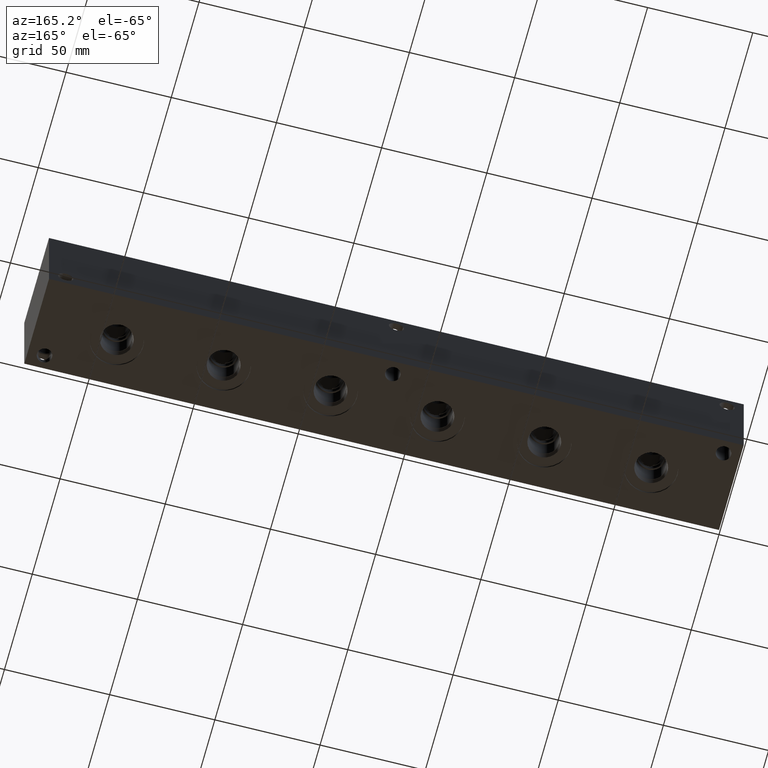
[diagram: clean part render]
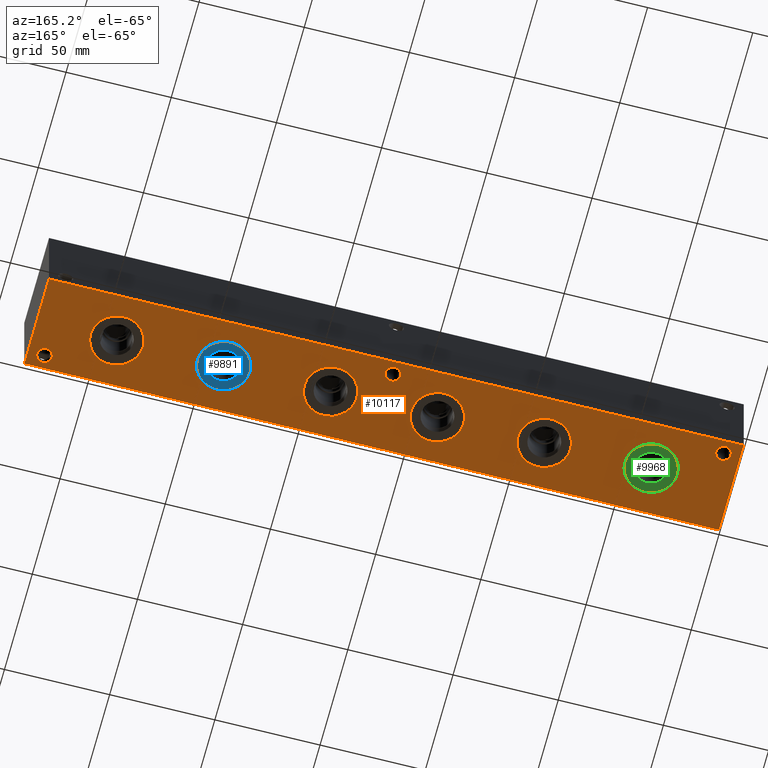
[diagram: same view with three faces highlighted in distinct colors, each labeled with its STEP entity id]
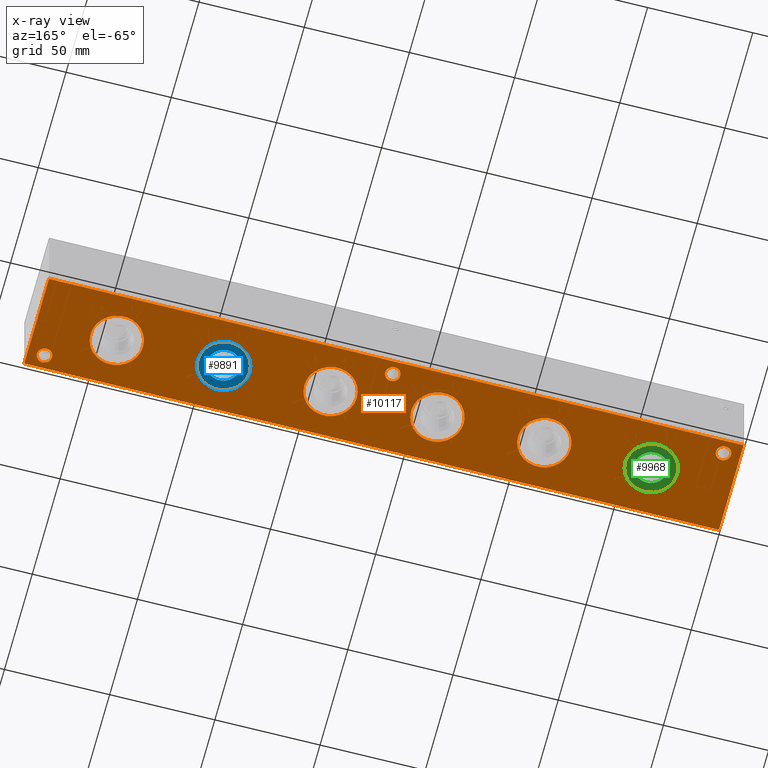
[diagram: x-ray of the same camera — body ghosted, the three highlighted faces saturated]
A machine part, auxiliary view with three faces highlighted in distinct colors.
The next image is the same camera in x-ray (body ghosted, the three faces saturated) — at least one of them is partly hidden behind the body in this view.
Their STEP definitions:

[orange] entity #10117 — the highlighted planar face has unit normal (0, 0, 1).
#290=CIRCLE('',#10347,12.5095);
#291=CIRCLE('',#10348,12.5095);
#301=CIRCLE('',#10363,12.5095);
#302=CIRCLE('',#10364,12.5095);
#312=CIRCLE('',#10379,12.5095);
#313=CIRCLE('',#10380,12.5095);
#323=CIRCLE('',#10395,12.5095);
#324=CIRCLE('',#10396,12.5095);
#334=CIRCLE('',#10411,12.5095);
#335=CIRCLE('',#10412,12.5095);
#420=CIRCLE('',#10582,12.5095);
#421=CIRCLE('',#10583,12.5095);
#554=CIRCLE('',#10847,3.5687);
#555=CIRCLE('',#10849,3.5687);
#556=CIRCLE('',#10851,3.5687);
#704=FACE_BOUND('',#2253,.T.);
#705=FACE_BOUND('',#2254,.T.);
#706=FACE_BOUND('',#2255,.T.);
#707=FACE_BOUND('',#2256,.T.);
#708=FACE_BOUND('',#2257,.T.);
#709=FACE_BOUND('',#2258,.T.);
#710=FACE_BOUND('',#2259,.T.);
#711=FACE_BOUND('',#2260,.T.);
#712=FACE_BOUND('',#2261,.T.);
#1630=FACE_OUTER_BOUND('',#2252,.T.);
#2252=EDGE_LOOP('',(#9020,#9021,#9022,#9023));
#2253=EDGE_LOOP('',(#9024,#9025));
#2254=EDGE_LOOP('',(#9026,#9027));
#2255=EDGE_LOOP('',(#9028,#9029));
#2256=EDGE_LOOP('',(#9030,#9031));
#2257=EDGE_LOOP('',(#9032,#9033));
#2258=EDGE_LOOP('',(#9034,#9035));
#2259=EDGE_LOOP('',(#9036));
#2260=EDGE_LOOP('',(#9037));
#2261=EDGE_LOOP('',(#9038));
#3007=LINE('',#18010,#3760);
#3010=LINE('',#18015,#3763);
#3012=LINE('',#18019,#3765);
#3014=LINE('',#18022,#3767);
#3760=VECTOR('',#13401,10.);
#3763=VECTOR('',#13406,10.);
#3765=VECTOR('',#13410,10.);
#3767=VECTOR('',#13414,10.);
#4356=VERTEX_POINT('',#16672);
#4357=VERTEX_POINT('',#16673);
#4367=VERTEX_POINT('',#16703);
#4368=VERTEX_POINT('',#16704);
#4378=VERTEX_POINT('',#16734);
#4379=VERTEX_POINT('',#16735);
#4389=VERTEX_POINT('',#16765);
#4390=VERTEX_POINT('',#16766);
#4400=VERTEX_POINT('',#16796);
#4401=VERTEX_POINT('',#16797);
#4509=VERTEX_POINT('',#17223);
#4510=VERTEX_POINT('',#17224);
#4659=VERTEX_POINT('',#17796);
#4660=VERTEX_POINT('',#17800);
#4661=VERTEX_POINT('',#17804);
#4718=VERTEX_POINT('',#18008);
#4719=VERTEX_POINT('',#18009);
#4720=VERTEX_POINT('',#18014);
#4721=VERTEX_POINT('',#18018);
#5593=EDGE_CURVE('',#4356,#4357,#290,.T.);
#5594=EDGE_CURVE('',#4357,#4356,#291,.T.);
#5608=EDGE_CURVE('',#4367,#4368,#301,.T.);
#5609=EDGE_CURVE('',#4368,#4367,#302,.T.);
#5623=EDGE_CURVE('',#4378,#4379,#312,.T.);
#5624=EDGE_CURVE('',#4379,#4378,#313,.T.);
#5638=EDGE_CURVE('',#4389,#4390,#323,.T.);
#5639=EDGE_CURVE('',#4390,#4389,#324,.T.);
#5653=EDGE_CURVE('',#4400,#4401,#334,.T.);
#5654=EDGE_CURVE('',#4401,#4400,#335,.T.);
#5817=EDGE_CURVE('',#4509,#4510,#420,.T.);
#5818=EDGE_CURVE('',#4510,#4509,#421,.T.);
#6057=EDGE_CURVE('',#4659,#4659,#554,.T.);
#6059=EDGE_CURVE('',#4660,#4660,#555,.T.);
#6061=EDGE_CURVE('',#4661,#4661,#556,.T.);
#6153=EDGE_CURVE('',#4718,#4719,#3007,.T.);
#6156=EDGE_CURVE('',#4720,#4718,#3010,.T.);
#6158=EDGE_CURVE('',#4721,#4720,#3012,.T.);
#6160=EDGE_CURVE('',#4719,#4721,#3014,.T.);
#9020=ORIENTED_EDGE('',*,*,#6160,.F.);
#9021=ORIENTED_EDGE('',*,*,#6153,.F.);
#9022=ORIENTED_EDGE('',*,*,#6156,.F.);
#9023=ORIENTED_EDGE('',*,*,#6158,.F.);
#9024=ORIENTED_EDGE('',*,*,#5593,.T.);
#9025=ORIENTED_EDGE('',*,*,#5594,.T.);
#9026=ORIENTED_EDGE('',*,*,#5608,.T.);
#9027=ORIENTED_EDGE('',*,*,#5609,.T.);
#9028=ORIENTED_EDGE('',*,*,#5623,.T.);
#9029=ORIENTED_EDGE('',*,*,#5624,.T.);
#9030=ORIENTED_EDGE('',*,*,#5638,.T.);
#9031=ORIENTED_EDGE('',*,*,#5639,.T.);
#9032=ORIENTED_EDGE('',*,*,#5653,.T.);
#9033=ORIENTED_EDGE('',*,*,#5654,.T.);
#9034=ORIENTED_EDGE('',*,*,#5817,.T.);
#9035=ORIENTED_EDGE('',*,*,#5818,.T.);
#9036=ORIENTED_EDGE('',*,*,#6057,.T.);
#9037=ORIENTED_EDGE('',*,*,#6059,.T.);
#9038=ORIENTED_EDGE('',*,*,#6061,.T.);
#9276=PLANE('',#10975);
#10117=ADVANCED_FACE('',(#1630,#704,#705,#706,#707,#708,#709,#710,#711,
#712),#9276,.F.);
#10347=AXIS2_PLACEMENT_3D('',#16674,#12033,#12034);
#10348=AXIS2_PLACEMENT_3D('',#16675,#12035,#12036);
#10363=AXIS2_PLACEMENT_3D('',#16705,#12069,#12070);
#10364=AXIS2_PLACEMENT_3D('',#16706,#12071,#12072);
#10379=AXIS2_PLACEMENT_3D('',#16736,#12105,#12106);
#10380=AXIS2_PLACEMENT_3D('',#16737,#12107,#12108);
#10395=AXIS2_PLACEMENT_3D('',#16767,#12141,#12142);
#10396=AXIS2_PLACEMENT_3D('',#16768,#12143,#12144);
#10411=AXIS2_PLACEMENT_3D('',#16798,#12177,#12178);
#10412=AXIS2_PLACEMENT_3D('',#16799,#12179,#12180);
#10582=AXIS2_PLACEMENT_3D('',#17225,#12541,#12542);
#10583=AXIS2_PLACEMENT_3D('',#17226,#12543,#12544);
#10847=AXIS2_PLACEMENT_3D('',#17798,#13125,#13126);
#10849=AXIS2_PLACEMENT_3D('',#17802,#13130,#13131);
#10851=AXIS2_PLACEMENT_3D('',#17806,#13135,#13136);
#10975=AXIS2_PLACEMENT_3D('',#18024,#13417,#13418);
#12033=DIRECTION('center_axis',(0.,0.,1.));
#12034=DIRECTION('ref_axis',(1.,0.,0.));
#12035=DIRECTION('center_axis',(0.,0.,1.));
#12036=DIRECTION('ref_axis',(1.,0.,0.));
#12069=DIRECTION('center_axis',(0.,0.,1.));
#12070=DIRECTION('ref_axis',(1.,0.,0.));
#12071=DIRECTION('center_axis',(0.,0.,1.));
#12072=DIRECTION('ref_axis',(1.,0.,0.));
#12105=DIRECTION('center_axis',(0.,0.,1.));
#12106=DIRECTION('ref_axis',(1.,0.,0.));
#12107=DIRECTION('center_axis',(0.,0.,1.));
#12108=DIRECTION('ref_axis',(1.,0.,0.));
#12141=DIRECTION('center_axis',(0.,0.,1.));
#12142=DIRECTION('ref_axis',(1.,0.,0.));
#12143=DIRECTION('center_axis',(0.,0.,1.));
#12144=DIRECTION('ref_axis',(1.,0.,0.));
#12177=DIRECTION('center_axis',(0.,0.,1.));
#12178=DIRECTION('ref_axis',(1.,0.,0.));
#12179=DIRECTION('center_axis',(0.,0.,1.));
#12180=DIRECTION('ref_axis',(1.,0.,0.));
#12541=DIRECTION('center_axis',(0.,0.,1.));
#12542=DIRECTION('ref_axis',(1.,0.,0.));
#12543=DIRECTION('center_axis',(0.,0.,1.));
#12544=DIRECTION('ref_axis',(1.,0.,0.));
#13125=DIRECTION('center_axis',(0.,0.,1.));
#13126=DIRECTION('ref_axis',(1.,0.,0.));
#13130=DIRECTION('center_axis',(0.,0.,1.));
#13131=DIRECTION('ref_axis',(1.,0.,0.));
#13135=DIRECTION('center_axis',(0.,0.,1.));
#13136=DIRECTION('ref_axis',(1.,0.,0.));
#13401=DIRECTION('',(0.,-1.,0.));
#13406=DIRECTION('',(-1.,0.,0.));
#13410=DIRECTION('',(0.,1.,0.));
#13414=DIRECTION('',(1.,0.,0.));
#13417=DIRECTION('center_axis',(0.,0.,1.));
#13418=DIRECTION('ref_axis',(1.,0.,0.));
#16672=CARTESIAN_POINT('',(253.8095,22.225,0.));
#16673=CARTESIAN_POINT('',(228.7905,22.225,0.));
#16674=CARTESIAN_POINT('Origin',(241.3,22.225,0.));
#16675=CARTESIAN_POINT('Origin',(241.3,22.225,0.));
#16703=CARTESIAN_POINT('',(152.2095,22.225,0.));
#16704=CARTESIAN_POINT('',(127.1905,22.225,0.));
#16705=CARTESIAN_POINT('Origin',(139.7,22.225,0.));
#16706=CARTESIAN_POINT('Origin',(139.7,22.225,0.));
#16734=CARTESIAN_POINT('',(203.0095,22.225,0.));
#16735=CARTESIAN_POINT('',(177.9905,22.225,0.));
#16736=CARTESIAN_POINT('Origin',(190.5,22.225,0.));
#16737=CARTESIAN_POINT('Origin',(190.5,22.225,0.));
#16765=CARTESIAN_POINT('',(304.6095,22.225,0.));
#16766=CARTESIAN_POINT('',(279.5905,22.225,0.));
#16767=CARTESIAN_POINT('Origin',(292.1,22.225,0.));
#16768=CARTESIAN_POINT('Origin',(292.1,22.225,0.));
#16796=CARTESIAN_POINT('',(101.4095,22.225,0.));
#16797=CARTESIAN_POINT('',(76.3905,22.225,0.));
#16798=CARTESIAN_POINT('Origin',(88.9,22.225,0.));
#16799=CARTESIAN_POINT('Origin',(88.9,22.225,0.));
#17223=CARTESIAN_POINT('',(50.6095,22.225,0.));
#17224=CARTESIAN_POINT('',(25.5905,22.225,0.));
#17225=CARTESIAN_POINT('Origin',(38.1,22.225,0.));
#17226=CARTESIAN_POINT('Origin',(38.1,22.225,0.));
#17796=CARTESIAN_POINT('',(318.7065,6.35,0.));
#17798=CARTESIAN_POINT('Origin',(322.2752,6.35,0.));
#17800=CARTESIAN_POINT('',(4.3561,38.1,0.));
#17802=CARTESIAN_POINT('Origin',(7.9248,38.1,0.));
#17804=CARTESIAN_POINT('',(161.5313,38.1,0.));
#17806=CARTESIAN_POINT('Origin',(165.1,38.1,0.));
#18008=CARTESIAN_POINT('',(0.,44.45,0.));
#18009=CARTESIAN_POINT('',(0.,0.,0.));
#18010=CARTESIAN_POINT('',(0.,44.45,0.));
#18014=CARTESIAN_POINT('',(330.2,44.45,0.));
#18015=CARTESIAN_POINT('',(330.2,44.45,0.));
#18018=CARTESIAN_POINT('',(330.2,0.,0.));
#18019=CARTESIAN_POINT('',(330.2,0.,0.));
#18022=CARTESIAN_POINT('',(0.,0.,0.));
#18024=CARTESIAN_POINT('Origin',(165.1,22.225,0.));

[blue] entity #9891 — the highlighted planar face has unit normal (0, 0, 1).
#292=CIRCLE('',#10349,12.5095);
#293=CIRCLE('',#10350,12.5095);
#294=CIRCLE('',#10352,7.79779999999999);
#295=CIRCLE('',#10353,7.79779999999999);
#656=FACE_BOUND('',#1979,.T.);
#1404=FACE_OUTER_BOUND('',#1978,.T.);
#1978=EDGE_LOOP('',(#7884,#7885));
#1979=EDGE_LOOP('',(#7886,#7887));
#4358=VERTEX_POINT('',#16676);
#4359=VERTEX_POINT('',#16678);
#4360=VERTEX_POINT('',#16682);
#4361=VERTEX_POINT('',#16683);
#5596=EDGE_CURVE('',#4358,#4359,#292,.T.);
#5597=EDGE_CURVE('',#4359,#4358,#293,.T.);
#5598=EDGE_CURVE('',#4360,#4361,#294,.T.);
#5599=EDGE_CURVE('',#4361,#4360,#295,.T.);
#7884=ORIENTED_EDGE('',*,*,#5597,.F.);
#7885=ORIENTED_EDGE('',*,*,#5596,.F.);
#7886=ORIENTED_EDGE('',*,*,#5598,.T.);
#7887=ORIENTED_EDGE('',*,*,#5599,.T.);
#9235=PLANE('',#10351);
#9891=ADVANCED_FACE('',(#1404,#656),#9235,.F.);
#10349=AXIS2_PLACEMENT_3D('',#16679,#12038,#12039);
#10350=AXIS2_PLACEMENT_3D('',#16680,#12040,#12041);
#10351=AXIS2_PLACEMENT_3D('',#16681,#12042,#12043);
#10352=AXIS2_PLACEMENT_3D('',#16684,#12044,#12045);
#10353=AXIS2_PLACEMENT_3D('',#16685,#12046,#12047);
#12038=DIRECTION('center_axis',(0.,0.,1.));
#12039=DIRECTION('ref_axis',(1.,0.,0.));
#12040=DIRECTION('center_axis',(0.,0.,1.));
#12041=DIRECTION('ref_axis',(1.,0.,0.));
#12042=DIRECTION('center_axis',(0.,0.,1.));
#12043=DIRECTION('ref_axis',(1.,0.,0.));
#12044=DIRECTION('center_axis',(0.,0.,1.));
#12045=DIRECTION('ref_axis',(1.,0.,0.));
#12046=DIRECTION('center_axis',(0.,0.,1.));
#12047=DIRECTION('ref_axis',(1.,0.,0.));
#16676=CARTESIAN_POINT('',(228.7905,22.225,0.7874));
#16678=CARTESIAN_POINT('',(253.8095,22.225,0.7874));
#16679=CARTESIAN_POINT('Origin',(241.3,22.225,0.7874));
#16680=CARTESIAN_POINT('Origin',(241.3,22.225,0.7874));
#16681=CARTESIAN_POINT('Origin',(249.0978,22.225,0.7874));
#16682=CARTESIAN_POINT('',(249.0978,22.225,0.7874));
#16683=CARTESIAN_POINT('',(233.5022,22.225,0.787400000000001));
#16684=CARTESIAN_POINT('Origin',(241.3,22.225,0.7874));
#16685=CARTESIAN_POINT('Origin',(241.3,22.225,0.7874));

[green] entity #9968 — the highlighted planar face has unit normal (0, 0, 1).
#422=CIRCLE('',#10584,12.5095);
#423=CIRCLE('',#10585,12.5095);
#424=CIRCLE('',#10587,7.7978);
#425=CIRCLE('',#10588,7.7978);
#667=FACE_BOUND('',#2067,.T.);
#1481=FACE_OUTER_BOUND('',#2066,.T.);
#2066=EDGE_LOOP('',(#8265,#8266));
#2067=EDGE_LOOP('',(#8267,#8268));
#4511=VERTEX_POINT('',#17227);
#4512=VERTEX_POINT('',#17229);
#4513=VERTEX_POINT('',#17233);
#4514=VERTEX_POINT('',#17234);
#5820=EDGE_CURVE('',#4511,#4512,#422,.T.);
#5821=EDGE_CURVE('',#4512,#4511,#423,.T.);
#5822=EDGE_CURVE('',#4513,#4514,#424,.T.);
#5823=EDGE_CURVE('',#4514,#4513,#425,.T.);
#8265=ORIENTED_EDGE('',*,*,#5821,.F.);
#8266=ORIENTED_EDGE('',*,*,#5820,.F.);
#8267=ORIENTED_EDGE('',*,*,#5822,.T.);
#8268=ORIENTED_EDGE('',*,*,#5823,.T.);
#9246=PLANE('',#10586);
#9968=ADVANCED_FACE('',(#1481,#667),#9246,.F.);
#10584=AXIS2_PLACEMENT_3D('',#17230,#12546,#12547);
#10585=AXIS2_PLACEMENT_3D('',#17231,#12548,#12549);
#10586=AXIS2_PLACEMENT_3D('',#17232,#12550,#12551);
#10587=AXIS2_PLACEMENT_3D('',#17235,#12552,#12553);
#10588=AXIS2_PLACEMENT_3D('',#17236,#12554,#12555);
#12546=DIRECTION('center_axis',(0.,0.,1.));
#12547=DIRECTION('ref_axis',(1.,0.,0.));
#12548=DIRECTION('center_axis',(0.,0.,1.));
#12549=DIRECTION('ref_axis',(1.,0.,0.));
#12550=DIRECTION('center_axis',(0.,0.,1.));
#12551=DIRECTION('ref_axis',(1.,0.,0.));
#12552=DIRECTION('center_axis',(0.,0.,1.));
#12553=DIRECTION('ref_axis',(1.,0.,0.));
#12554=DIRECTION('center_axis',(0.,0.,1.));
#12555=DIRECTION('ref_axis',(1.,0.,0.));
#17227=CARTESIAN_POINT('',(25.5905,22.225,0.7874));
#17229=CARTESIAN_POINT('',(50.6095,22.225,0.7874));
#17230=CARTESIAN_POINT('Origin',(38.1,22.225,0.7874));
#17231=CARTESIAN_POINT('Origin',(38.1,22.225,0.7874));
#17232=CARTESIAN_POINT('Origin',(45.8978,22.225,0.7874));
#17233=CARTESIAN_POINT('',(45.8978,22.225,0.7874));
#17234=CARTESIAN_POINT('',(30.3022,22.225,0.787399999999999));
#17235=CARTESIAN_POINT('Origin',(38.1,22.225,0.7874));
#17236=CARTESIAN_POINT('Origin',(38.1,22.225,0.7874));